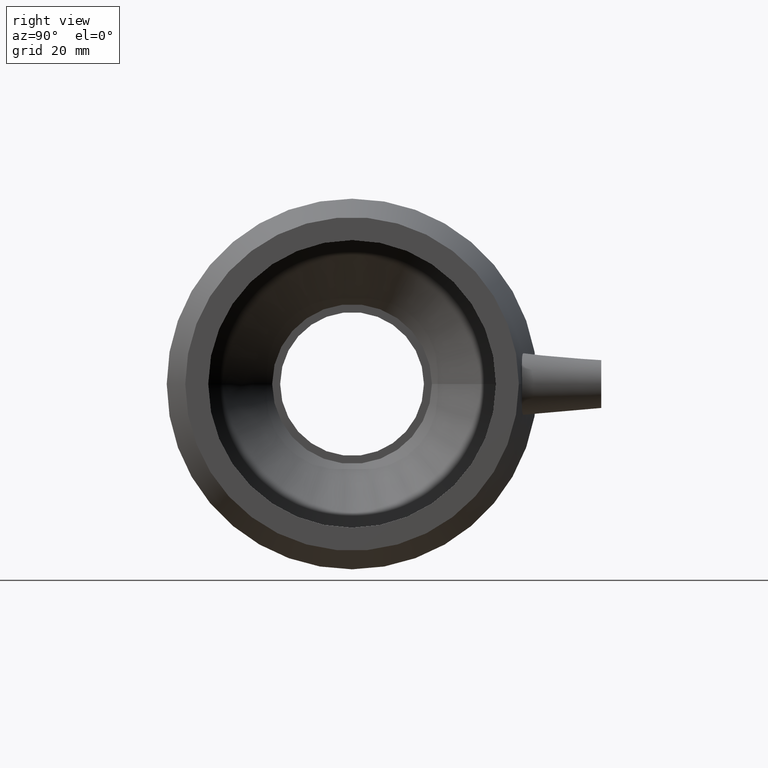
[diagram: clean part render]
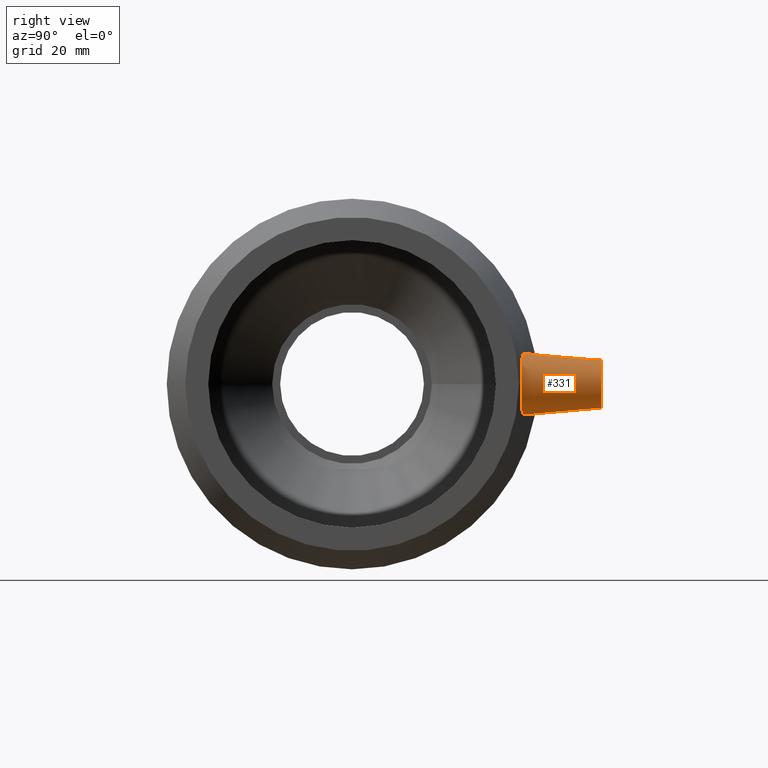
[diagram: same view with one face highlighted and labeled with its STEP entity id]
A machine part, right view. The second image highlights one B-rep face of the part: STEP entity #331.
In plain terms, the highlighted conical surface has half-angle 5 deg.
Its self-contained STEP definition (entity closure, byte-faithful):
#15=B_SPLINE_CURVE_WITH_KNOTS('',3,(#561,#562,#563,#564,#565,#566,#567,
#568,#569,#570,#571,#572,#573,#574,#575,#576,#577,#578,#579,#580,#581,#582,
#583,#584,#585,#586,#587,#588,#589,#590,#591,#592,#593,#594),
 .UNSPECIFIED.,.T.,.F.,(4,2,2,2,2,2,2,2,2,2,2,2,2,2,2,2,4),(0.,0.355515660823656,
0.711031321647313,1.06773550508289,1.42443968851846,1.78114387195404,2.13784805538961,
2.49336371621327,2.84887937703693,3.22409479939548,3.59931022175403,3.96701003811092,
4.33470985446781,4.7024096708247,5.07010948718159,5.44532490954015,5.8205403318987),
 .UNSPECIFIED.);
#17=CONICAL_SURFACE('',#370,7.5,5.);
#29=FACE_BOUND('',#109,.T.);
#73=FACE_OUTER_BOUND('',#108,.T.);
#108=EDGE_LOOP('',(#261));
#109=EDGE_LOOP('',(#262));
#165=CIRCLE('',#369,7.5);
#194=VERTEX_POINT('',#557);
#195=VERTEX_POINT('',#560);
#225=EDGE_CURVE('',#194,#194,#165,.T.);
#226=EDGE_CURVE('',#195,#195,#15,.T.);
#261=ORIENTED_EDGE('',*,*,#225,.T.);
#262=ORIENTED_EDGE('',*,*,#226,.F.);
#331=ADVANCED_FACE('',(#73,#29),#17,.T.);
#369=AXIS2_PLACEMENT_3D('',#558,#442,#443);
#370=AXIS2_PLACEMENT_3D('',#559,#444,#445);
#442=DIRECTION('center_axis',(0.,-1.,0.));
#443=DIRECTION('ref_axis',(1.,0.,0.));
#444=DIRECTION('center_axis',(0.,-1.,0.));
#445=DIRECTION('ref_axis',(1.,0.,0.));
#557=CARTESIAN_POINT('',(46.84,78.,9.18485099360515E-16));
#558=CARTESIAN_POINT('Origin',(54.34,78.,0.));
#559=CARTESIAN_POINT('Origin',(54.34,78.,0.));
#560=CARTESIAN_POINT('',(54.6844382019174,53.6324984198828,-9.62571958274559));
#561=CARTESIAN_POINT('Ctrl Pts',(54.6844382019173,53.6324984198828,-9.62571958274559));
#562=CARTESIAN_POINT('Ctrl Pts',(55.858657195573,53.4751424739049,-9.59747804533289));
#563=CARTESIAN_POINT('Ctrl Pts',(57.1116350805525,53.3505878440253,-9.33513874917881));
#564=CARTESIAN_POINT('Ctrl Pts',(59.4130218894319,53.2000251478299,-8.32741239210731));
#565=CARTESIAN_POINT('Ctrl Pts',(60.4612468355212,53.1716994883411,-7.58195278327851));
#566=CARTESIAN_POINT('Ctrl Pts',(62.1140501655884,53.1606396040108,-5.87774947852618));
#567=CARTESIAN_POINT('Ctrl Pts',(62.8292327935707,53.1768465250202,-4.80351403818518));
#568=CARTESIAN_POINT('Ctrl Pts',(63.7761669057427,53.2076662581299,-2.45915121636178));
#569=CARTESIAN_POINT('Ctrl Pts',(64.0079653838798,53.2200422716783,-1.18901394478525));
#570=CARTESIAN_POINT('Ctrl Pts',(64.0079653838798,53.2200422716783,1.18901394478525));
#571=CARTESIAN_POINT('Ctrl Pts',(63.7761669057427,53.2076662581299,2.45915121636178));
#572=CARTESIAN_POINT('Ctrl Pts',(62.8292327935707,53.1768465250202,4.80351403818518));
#573=CARTESIAN_POINT('Ctrl Pts',(62.1140501655884,53.1606396040108,5.87774947852618));
#574=CARTESIAN_POINT('Ctrl Pts',(60.4612468355212,53.1716994883411,7.58195278327851));
#575=CARTESIAN_POINT('Ctrl Pts',(59.4130218894319,53.2000251478299,8.32741239210731));
#576=CARTESIAN_POINT('Ctrl Pts',(57.1116350805525,53.3505878440253,9.33513874917882));
#577=CARTESIAN_POINT('Ctrl Pts',(55.858657195573,53.4751424739049,9.59747804533289));
#578=CARTESIAN_POINT('Ctrl Pts',(53.4451536240586,53.7985737415549,9.65552603448898));
#579=CARTESIAN_POINT('Ctrl Pts',(52.1280334763788,54.0231411877754,9.42980391308833));
#580=CARTESIAN_POINT('Ctrl Pts',(49.7092690923028,54.5170090271316,8.45829860905824));
#581=CARTESIAN_POINT('Ctrl Pts',(48.6069852664227,54.7837752695238,7.71282135564777));
#582=CARTESIAN_POINT('Ctrl Pts',(46.8822184162863,55.2342867511997,5.9938981252018));
#583=CARTESIAN_POINT('Ctrl Pts',(46.1376979938937,55.4488766270944,4.91179108898409));
#584=CARTESIAN_POINT('Ctrl Pts',(45.1462369020102,55.743668601212,2.52788501367311));
#585=CARTESIAN_POINT('Ctrl Pts',(44.8996453210552,55.8216445337531,1.22566605452297));
#586=CARTESIAN_POINT('Ctrl Pts',(44.8996453210552,55.8216445337531,-1.22566605452297));
#587=CARTESIAN_POINT('Ctrl Pts',(45.1462369020102,55.743668601212,-2.52788501367312));
#588=CARTESIAN_POINT('Ctrl Pts',(46.1376979938937,55.4488766270944,-4.9117910889841));
#589=CARTESIAN_POINT('Ctrl Pts',(46.8822184162863,55.2342867511997,-5.9938981252018));
#590=CARTESIAN_POINT('Ctrl Pts',(48.6069852664227,54.7837752695238,-7.71282135564777));
#591=CARTESIAN_POINT('Ctrl Pts',(49.7092690923028,54.5170090271316,-8.45829860905824));
#592=CARTESIAN_POINT('Ctrl Pts',(52.1280334763788,54.0231411877754,-9.42980391308833));
#593=CARTESIAN_POINT('Ctrl Pts',(53.4451536240586,53.7985737415549,-9.65552603448898));
#594=CARTESIAN_POINT('Ctrl Pts',(54.6844382019173,53.6324984198828,-9.62571958274559));